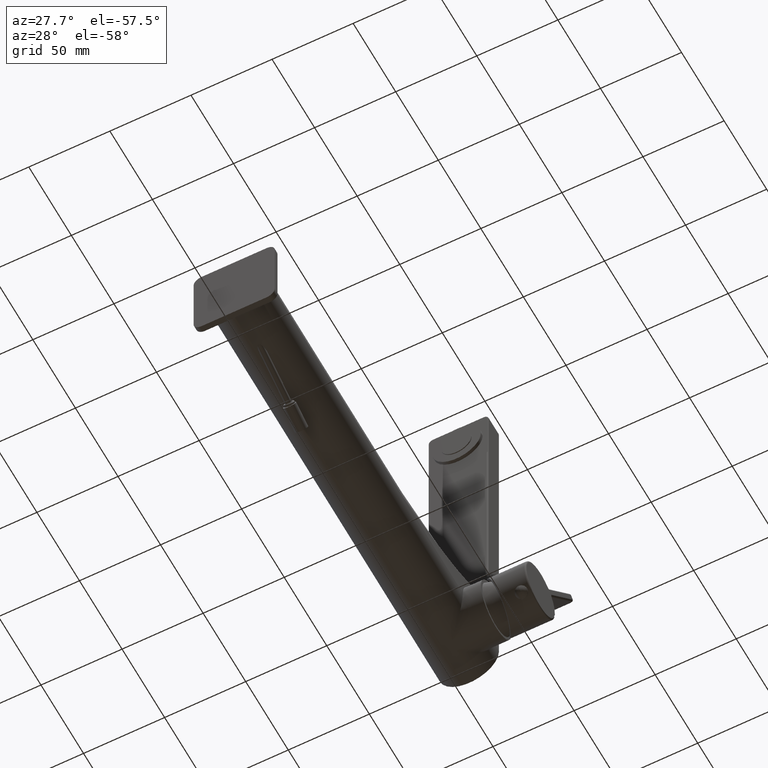
[diagram: clean part render]
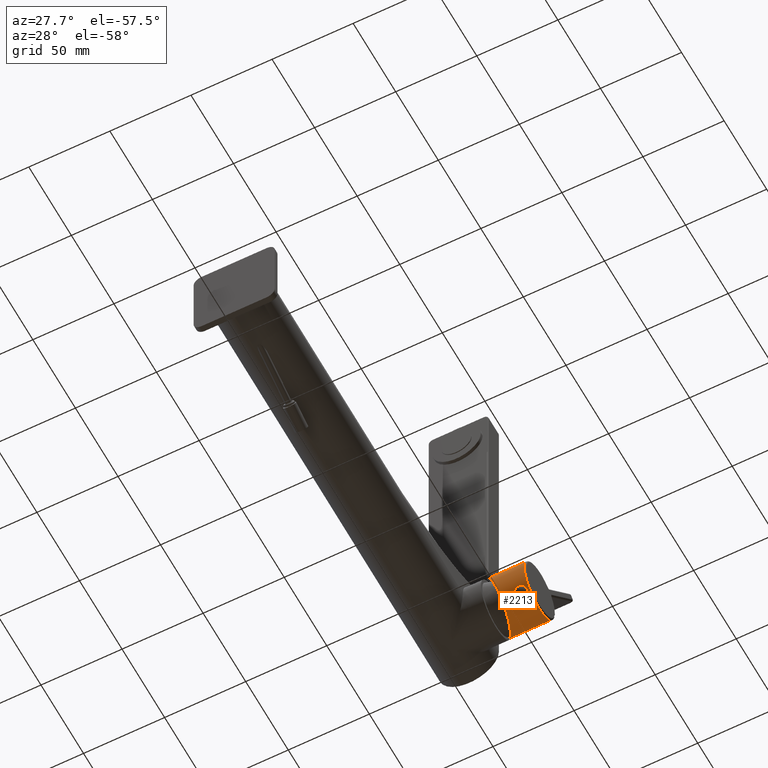
[diagram: same view with one face highlighted and labeled with its STEP entity id]
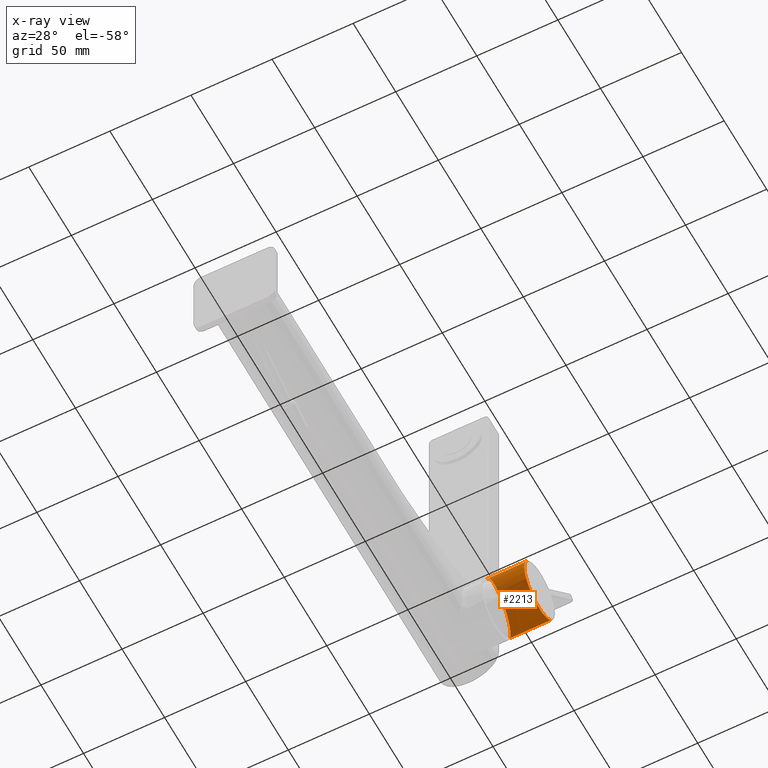
[diagram: x-ray of the same camera — body ghosted, the highlighted face saturated]
A machine part, auxiliary view. The second image highlights one B-rep face of the part: STEP entity #2213.
The next image is the same camera in x-ray: the body ghosted, the highlighted face saturated — about 0% of this face is hidden behind the body in this view.
In plain terms, the highlighted cylindrical surface (edge-blend (fillet) strip) has radius 17.5 mm, axis along (1, 0, 0).
Its self-contained STEP definition (entity closure, byte-faithful):
#1671=CARTESIAN_POINT('',(3.101555214653E1,2.608397460513E2,-1.132747666291E1));
#1672=CARTESIAN_POINT('',(3.149640799941E1,2.601769052008E2,-1.211741936506E1));
#1673=CARTESIAN_POINT('',(3.249411690550E1,2.586612762686E2,-1.363869246338E1));
#1674=CARTESIAN_POINT('',(3.402863338081E1,2.558346481062E2,-1.556267271409E1));
#1675=CARTESIAN_POINT('',(3.550745054360E1,2.525474503970E2,-1.694426160296E1));
#1676=CARTESIAN_POINT('',(3.682756184668E1,2.489701565649E2,-1.763814158279E1));
#1677=CARTESIAN_POINT('',(3.771895727142E1,2.459342704835E2,-1.758614766134E1));
#1678=CARTESIAN_POINT('',(3.827766149046E1,2.435879654865E2,-1.718142843592E1));
#1679=CARTESIAN_POINT('',(3.861652073038E1,2.418947868145E2,-1.670930220370E1));
#1680=CARTESIAN_POINT('',(3.887420407388E1,2.402903624336E2,-1.608440174433E1));
#1681=CARTESIAN_POINT('',(3.902265404635E1,2.390420898257E2,-1.545255473558E1));
#1682=CARTESIAN_POINT('',(3.910351727884E1,2.381031800471E2,-1.489108828195E1));
#1683=CARTESIAN_POINT('',(3.914586817063E1,2.374299234799E2,-1.444471800339E1));
#1684=CARTESIAN_POINT('',(3.916650487548E1,2.368955524632E2,-1.405409877530E1));
#1685=CARTESIAN_POINT('',(3.917461827428E1,2.364840332307E2,-1.373150608659E1));
#1686=CARTESIAN_POINT('',(3.917661071912E1,2.361842723909E2,-1.348555454450E1));
#1687=CARTESIAN_POINT('',(3.917461827428E1,2.358900045645E2,-1.323305668608E1));
#1688=CARTESIAN_POINT('',(3.916650487548E1,2.355008533332E2,-1.288380686039E1));
#1689=CARTESIAN_POINT('',(3.914586817063E1,2.350233760859E2,-1.242538430083E1));
#1690=CARTESIAN_POINT('',(3.910351727884E1,2.344668775907E2,-1.183986721684E1));
#1691=CARTESIAN_POINT('',(3.902265404635E1,2.337509013730E2,-1.101271897938E1));
#1692=CARTESIAN_POINT('',(3.887420407388E1,2.329118936433E2,-9.893129244053E0));
#1693=CARTESIAN_POINT('',(3.861652073038E1,2.320178819383E2,-8.421592207653E0));
#1694=CARTESIAN_POINT('',(3.827766149046E1,2.312589114930E2,-6.836120335480E0));
#1695=CARTESIAN_POINT('',(3.771895727142E1,2.304529100090E2,-4.595739475316E0));
#1696=CARTESIAN_POINT('',(3.682756184668E1,2.298745308830E2,-1.615003785304E0));
#1697=CARTESIAN_POINT('',(3.550745054360E1,2.299366799056E2,2.028433888971E0));
#1698=CARTESIAN_POINT('',(3.402863338081E1,2.307264646022E2,5.505601812783E0));
#1699=CARTESIAN_POINT('',(3.249411690550E1,2.321303774619E2,8.623382346417E0));
#1700=CARTESIAN_POINT('',(3.149640799941E1,2.333653533771E2,1.038015136615E1));
#1701=CARTESIAN_POINT('',(3.101555214653E1,2.340281942276E2,1.117009406830E1));
#1703=DIRECTION('',(9.999999999998E-1,3.822420774213E-7,4.555382191285E-7));
#1704=VECTOR('',#1703,2.5E1);
#1705=CARTESIAN_POINT('',(3.101555214653E1,2.340281942276E2,1.117009406830E1));
#1706=LINE('',#1705,#1704);
#1707=CARTESIAN_POINT('',(5.601555214652E1,2.474339796955E2,
-7.867990885051E-2));
#1708=DIRECTION('',(-9.999999999998E-1,-3.822420727162E-7,-4.555382117910E-7));
#1709=DIRECTION('',(0.E0,7.660443378195E-1,-6.427877351775E-1));
#1710=AXIS2_PLACEMENT_3D('',#1707,#1708,#1709);
#1712=DIRECTION('',(9.999999999998E-1,3.822420626420E-7,4.555382042071E-7));
#1713=VECTOR('',#1712,2.5E1);
#1714=CARTESIAN_POINT('',(3.101555214653E1,2.608397460513E2,-1.132747666291E1));
#1715=LINE('',#1714,#1713);
#2015=CARTESIAN_POINT('',(3.101555214653E1,2.608397460513E2,-1.132747666291E1));
#2017=VERTEX_POINT('',#2015);
#2020=CARTESIAN_POINT('',(3.101555214653E1,2.340281942276E2,1.117009406830E1));
#2022=VERTEX_POINT('',#2020);
#2059=CARTESIAN_POINT('',(5.601555214652E1,2.340282037837E2,1.117010545676E1));
#2060=VERTEX_POINT('',#2059);
#2061=CARTESIAN_POINT('',(5.601555214652E1,2.608397556074E2,-1.132746527446E1));
#2062=VERTEX_POINT('',#2061);
#2199=CARTESIAN_POINT('',(3.101555214653E1,2.474339701395E2,
-7.869129730581E-2));
#2200=DIRECTION('',(9.999999999998E-1,3.822420727162E-7,4.555382117910E-7));
#2201=DIRECTION('',(0.E0,-7.660443378195E-1,6.427877351775E-1));
#2202=AXIS2_PLACEMENT_3D('',#2199,#2200,#2201);
#2203=CYLINDRICAL_SURFACE('',#2202,1.75E1);
#2204=ORIENTED_EDGE('',*,*,#2138,.T.);
#2206=ORIENTED_EDGE('',*,*,#2205,.T.);
#2208=ORIENTED_EDGE('',*,*,#2207,.F.);
#2210=ORIENTED_EDGE('',*,*,#2209,.F.);
#2211=EDGE_LOOP('',(#2204,#2206,#2208,#2210));
#2212=FACE_OUTER_BOUND('',#2211,.F.);
#2213=ADVANCED_FACE('',(#2212),#2203,.T.);
#1702=B_SPLINE_CURVE_WITH_KNOTS('',3,(#1671,#1672,#1673,#1674,#1675,#1676,#1677,
#1678,#1679,#1680,#1681,#1682,#1683,#1684,#1685,#1686,#1687,#1688,#1689,#1690,
#1691,#1692,#1693,#1694,#1695,#1696,#1697,#1698,#1699,#1700,#1701),
.UNSPECIFIED.,.F.,.F.,(4,1,1,1,1,1,1,1,1,1,1,1,1,1,1,1,1,1,1,1,1,1,1,1,1,1,1,1,
4),(0.E0,6.25E-2,1.25E-1,1.875E-1,2.5E-1,3.125E-1,3.4375E-1,3.75E-1,4.0625E-1,
4.375E-1,4.53125E-1,4.6875E-1,4.84375E-1,4.921875E-1,5.E-1,5.078125E-1,
5.15625E-1,5.3125E-1,5.46875E-1,5.625E-1,5.9375E-1,6.25E-1,6.5625E-1,6.875E-1,
7.5E-1,8.125E-1,8.75E-1,9.375E-1,1.E0),.UNSPECIFIED.);
#1711=CIRCLE('',#1710,1.75E1);
#2138=EDGE_CURVE('',#2017,#2022,#1702,.T.);
#2205=EDGE_CURVE('',#2022,#2060,#1706,.T.);
#2207=EDGE_CURVE('',#2062,#2060,#1711,.T.);
#2209=EDGE_CURVE('',#2017,#2062,#1715,.T.);